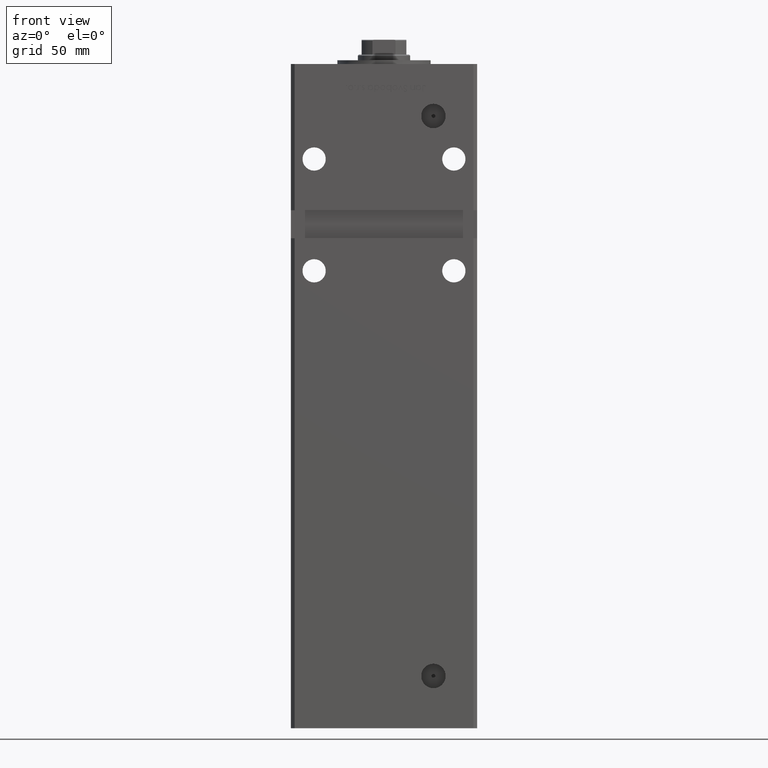
[diagram: clean part render]
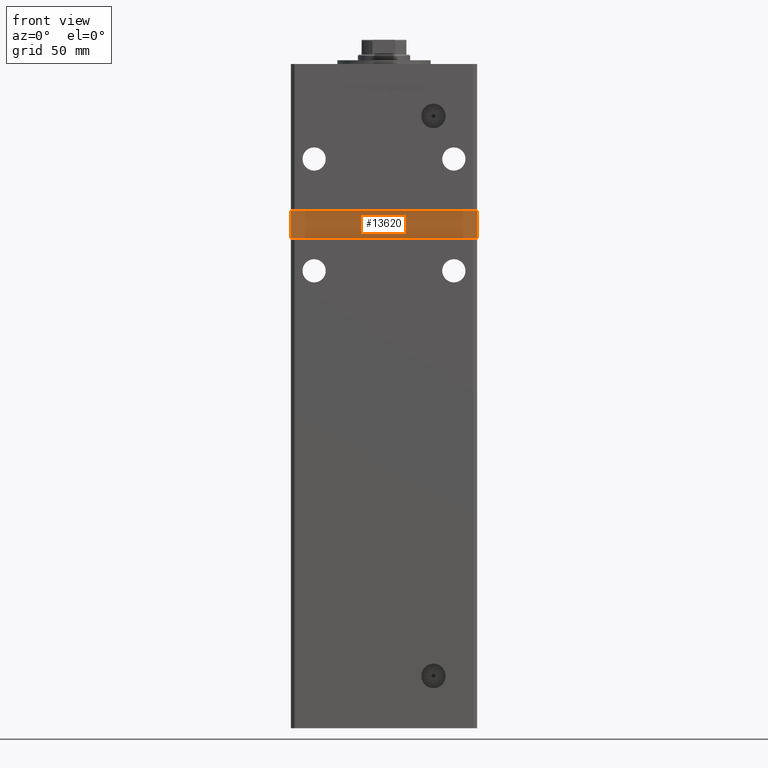
[diagram: same view with one face highlighted and labeled with its STEP entity id]
A machine part, front view. The second image highlights one B-rep face of the part: STEP entity #13620.
In plain terms, the highlighted planar face has unit normal (0, -1, 0).
Its self-contained STEP definition (entity closure, byte-faithful):
#305 = VERTEX_POINT ( 'NONE', #27724 ) ;
#1049 = EDGE_CURVE ( 'NONE', #25491, #27846, #30906, .T. ) ;
#6548 = LINE ( 'NONE', #39662, #22775 ) ;
#7026 = CARTESIAN_POINT ( 'NONE',  ( 0.000000000000000000, -38.50000000000000000, 0.000000000000000000 ) ) ;
#7866 = ORIENTED_EDGE ( 'NONE', *, *, #1049, .T. ) ;
#9915 = ORIENTED_EDGE ( 'NONE', *, *, #53074, .T. ) ;
#13620 = ADVANCED_FACE ( 'NONE', ( #49010 ), #23704, .T. ) ;
#13932 = CARTESIAN_POINT ( 'NONE',  ( -49.99999999999998579, -38.50000000000000000, 244.0000000000000000 ) ) ;
#15174 = CARTESIAN_POINT ( 'NONE',  ( -49.99999999999998579, -38.50000000000000000, 244.0000000000000000 ) ) ;
#16050 = ORIENTED_EDGE ( 'NONE', *, *, #42028, .T. ) ;
#16985 = VECTOR ( 'NONE', #36033, 1000.000000000000000 ) ;
#22775 = VECTOR ( 'NONE', #43168, 1000.000000000000000 ) ;
#23704 = PLANE ( 'NONE',  #46084 ) ;
#25491 = VERTEX_POINT ( 'NONE', #15174 ) ;
#26736 = EDGE_CURVE ( 'NONE', #27846, #305, #39617, .T. ) ;
#27152 = LINE ( 'NONE', #35240, #16985 ) ;
#27724 = CARTESIAN_POINT ( 'NONE',  ( 49.99999999999998579, -38.50000000000000000, 259.0000000000000000 ) ) ;
#27846 = VERTEX_POINT ( 'NONE', #40979 ) ;
#28395 = VECTOR ( 'NONE', #47318, 1000.000000000000000 ) ;
#30906 = LINE ( 'NONE', #13932, #28395 ) ;
#35240 = CARTESIAN_POINT ( 'NONE',  ( -49.99999999999998579, -38.50000000000000000, 259.0000000000000000 ) ) ;
#35317 = DIRECTION ( 'NONE',  ( -0.000000000000000000, -0.000000000000000000, 1.000000000000000000 ) ) ;
#36033 = DIRECTION ( 'NONE',  ( 0.000000000000000000, 0.000000000000000000, -1.000000000000000000 ) ) ;
#36729 = VERTEX_POINT ( 'NONE', #46541 ) ;
#36903 = DIRECTION ( 'NONE',  ( 0.000000000000000000, -0.000000000000000000, -1.000000000000000000 ) ) ;
#39617 = LINE ( 'NONE', #48208, #44996 ) ;
#39662 = CARTESIAN_POINT ( 'NONE',  ( -49.99999999999998579, -38.50000000000000000, 259.0000000000000000 ) ) ;
#40979 = CARTESIAN_POINT ( 'NONE',  ( 49.99999999999998579, -38.49999999999999289, 244.0000000000000000 ) ) ;
#42028 = EDGE_CURVE ( 'NONE', #305, #36729, #6548, .T. ) ;
#43168 = DIRECTION ( 'NONE',  ( -1.000000000000000000, -0.000000000000000000, -0.000000000000000000 ) ) ;
#44996 = VECTOR ( 'NONE', #35317, 1000.000000000000000 ) ;
#46084 = AXIS2_PLACEMENT_3D ( 'NONE', #7026, #52768, #36903 ) ;
#46541 = CARTESIAN_POINT ( 'NONE',  ( -49.99999999999998579, -38.50000000000000000, 259.0000000000000000 ) ) ;
#47318 = DIRECTION ( 'NONE',  ( 1.000000000000000000, 0.000000000000000000, 0.000000000000000000 ) ) ;
#48208 = CARTESIAN_POINT ( 'NONE',  ( 49.99999999999998579, -38.50000000000000000, 259.0000000000000000 ) ) ;
#48494 = ORIENTED_EDGE ( 'NONE', *, *, #26736, .T. ) ;
#49010 = FACE_OUTER_BOUND ( 'NONE', #49579, .T. ) ;
#49579 = EDGE_LOOP ( 'NONE', ( #48494, #16050, #9915, #7866 ) ) ;
#52768 = DIRECTION ( 'NONE',  ( 0.000000000000000000, -1.000000000000000000, 0.000000000000000000 ) ) ;
#53074 = EDGE_CURVE ( 'NONE', #36729, #25491, #27152, .T. ) ;